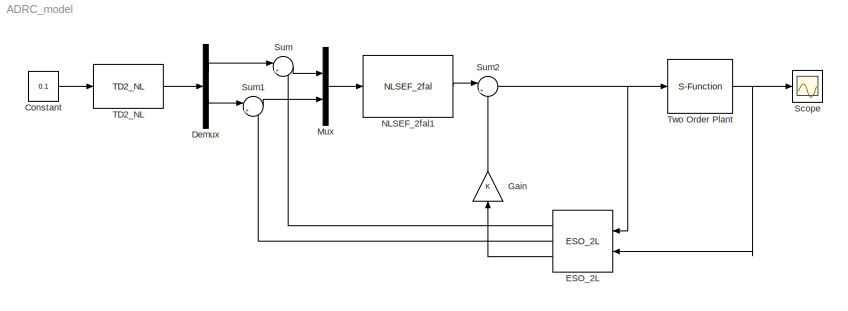
MODEL ADRC_model
KIND model
BLOCK [Constant] Constant
  SID = 4
  Value = 0.1
BLOCK [Demux] Demux
  DisplayOption = bar
  Outputs = 2
  Ports = [1, 2]
  SID = 8
BLOCK [Reference] ESO_2L  REF=ADRC/ESO/ESO_2L/ESO_2L
  FunctionWithSeparateData = off
  GeneratePreprocessorConditionals = off
  Ports = [2, 3]
  RTWMemSecDataConstants = Inherit from model
  RTWMemSecDataInternal = Inherit from model
  RTWMemSecDataParameters = Inherit from model
  RTWMemSecFuncExecute = Inherit from model
  RTWMemSecFuncInitTerm = Inherit from model
  SID = 16
  ShowPortLabels = FromPortIcon
  SourceBlock = ADRC/ESO/ESO_2L/ESO_2L
  SystemSampleTime = -1
  b = 1
  bet = [100 65 82]
BLOCK [Gain] Gain
  OutDataTypeStr = Inherit: Inherit via internal rule
  ParamDataTypeStr = Inherit: Inherit via internal rule
  SID = 13
  SaturateOnIntegerOverflow = off
BLOCK [Mux] Mux
  DisplayOption = bar
  Inputs = 2
  Ports = [2, 1]
  SID = 9
BLOCK [Reference] NLSEF_2fal1  REF=ADRC/SEF/NLSEF/NLSEF_2fal
  A1 = 0.25
  A2 = 0.5
  Beta1 = 8
  Beta2 = 5
  Delta = 0.1
  Ports = [1, 1]
  SID = 15
  SourceBlock = ADRC/SEF/NLSEF/NLSEF_2fal
BLOCK [Scope] Scope
  DataFormat = StructureWithTime
  Floating = off
  NumInputPorts = 1
  Ports = [1]
  SID = 12
  SampleTime = 0
  YMax = 0
  YMin = -1.2e+019
BLOCK [Sum] Sum
  IconShape = round
  InputSameDT = off
  Inputs = |+-
  OutDataTypeStr = Inherit: Inherit via internal rule
  Ports = [2, 1]
  SID = 10
  SaturateOnIntegerOverflow = off
BLOCK [Sum] Sum1
  IconShape = round
  InputSameDT = off
  Inputs = |+-
  OutDataTypeStr = Inherit: Inherit via internal rule
  Ports = [2, 1]
  SID = 11
  SaturateOnIntegerOverflow = off
BLOCK [Sum] Sum2
  IconShape = round
  InputSameDT = off
  Inputs = |+-
  OutDataTypeStr = Inherit: Inherit via internal rule
  Ports = [2, 1]
  SID = 14
  SaturateOnIntegerOverflow = off
BLOCK [Reference] TD2_NL  REF=ADRC/TD/TD2_NL/TD2_NL
  Ports = [1, 1]
  SID = 1
  SourceBlock = ADRC/TD/TD2_NL/TD2_NL
  h = 0.1
  h0 = 0.1
  r = 1
BLOCK [S-Function] Two  Order  Plant
  EnableBusSupport = off
  FunctionName = Plant2
  Ports = [1, 1]
  SID = 6
LINE Constant:1 -> TD2_NL:1
LINE Demux:1 -> Sum:1
LINE Demux:2 -> Sum1:1
LINE ESO_2L:1 -> Sum:2
LINE ESO_2L:2 -> Sum1:2
LINE ESO_2L:3 -> Gain:1
LINE Gain:1 -> Sum2:2
LINE Mux:1 -> NLSEF_2fal1:1
LINE NLSEF_2fal1:1 -> Sum2:1
LINE Sum1:1 -> Mux:2
NET Sum2:1 -> ESO_2L:1, Two  Order  Plant:1
LINE Sum:1 -> Mux:1
LINE TD2_NL:1 -> Demux:1
NET Two  Order  Plant:1 -> ESO_2L:2, Scope:1
note: NET lines group one-source signal fan-out (src -> all destinations, sorted); 1:1 wires keep LINE
